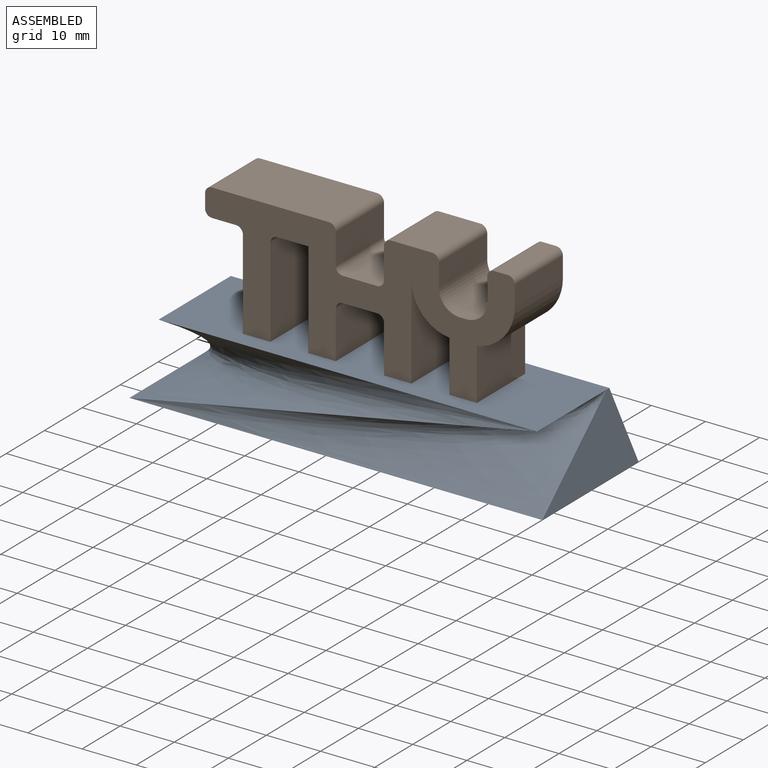
[diagram: assembled view]
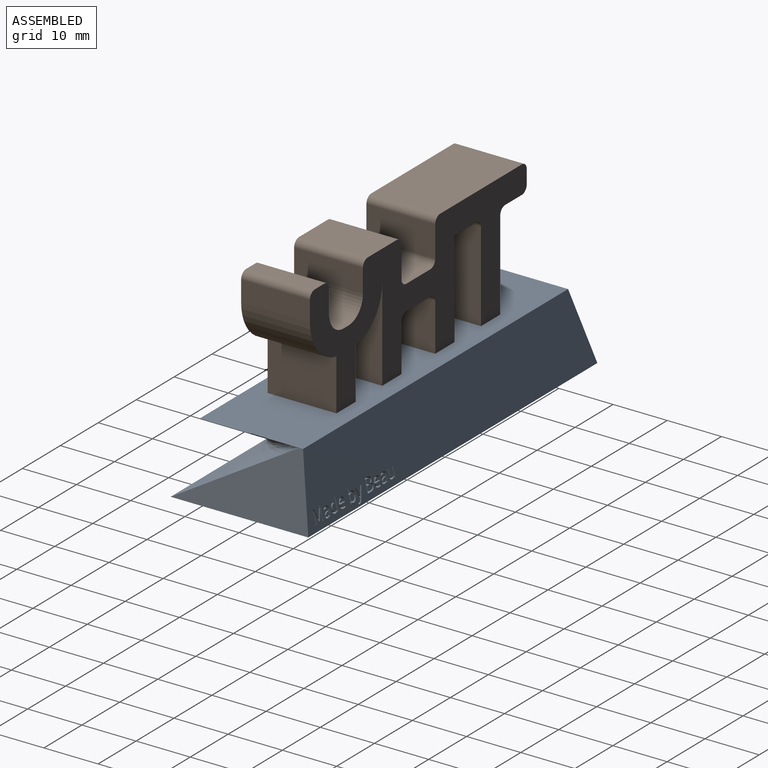
[diagram: assembled view, second angle]
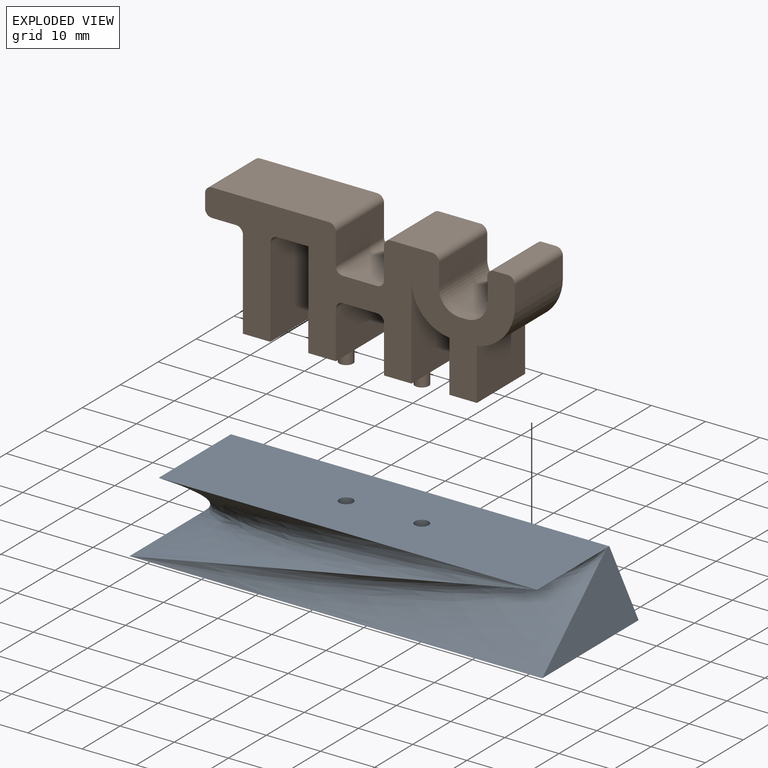
[diagram: exploded view]
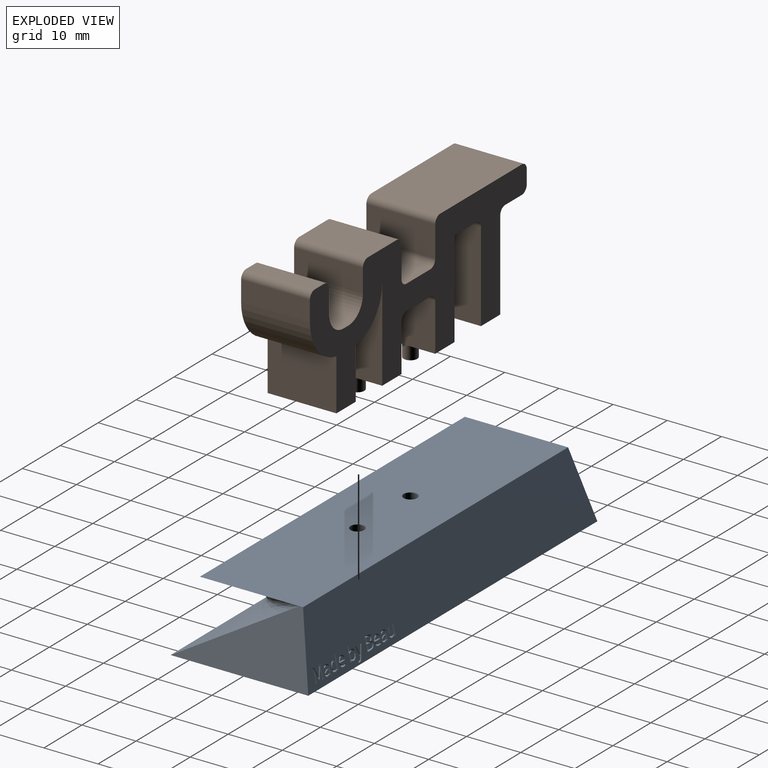
[diagram: exploded view, second angle]
ASSEMBLY  parts=2 mates=2
PART A: 185 faces, bbox 76.2x25.4x12.7 mm
  f0: plane 76.2x12.7mm, normal (0,0.97,0.24), area 934.9mm2, adj f1,f2,f3,f6,f7,f8,f9,f10
  f1: plane 76.2x25.4mm, normal (0,0,-1), area 1935.5mm2, adj f0,f3,f4,f5,f6
  f2: plane 69.85x19.05mm, normal (0,0,1), area 1320.5mm2, adj f0,f3,f4,f5,f6,f181,f183
  f3: plane 22.23x12.7mm, normal (-0.97,0,0.24), area 129.2mm2, adj f0,f1,f2,f4
  f4: bspline ~73.02x24.71mm, area 821.1mm2, adj f1,f2,f3,f5
  f5: bspline ~76.2x21.53mm, area 779mm2, adj f1,f2,f4,f6
  f6: plane 25.4x12.7mm, normal (0.97,0,0.24), area 170.8mm2, adj f0,f1,f2,f5
  f7: plane 2.08x1.21mm, normal (0.94,-0.08,0.32), area 1.6mm2, adj f0,f8,f21,f22
  f8: plane 0.74x0.29mm, normal (0,0.24,-0.97), area 0.2mm2, adj f0,f7,f9,f22
  f9: plane 1.16x0.98mm, normal (-0.95,0.07,-0.3), area 0.8mm2, adj f0,f8,f10,f22
  f10: extruded ~0.86x0.67mm, area 0.4mm2, adj f0,f9,f11,f22
  f11: plane 0.74x0.19mm, normal (0,0.24,-0.97), area 0mm2, adj f0,f10,f12,f22
  f12: extruded ~0.86x0.67mm, area 0.4mm2, adj f0,f11,f13,f22
  f13: plane 1.16x0.98mm, normal (0.94,0.08,-0.33), area 0.8mm2, adj f0,f12,f14,f22
  f14: plane 0.74x0.32mm, normal (0,0.24,-0.97), area 0.2mm2, adj f0,f13,f15,f22
  f15: plane 1.93x1.18mm, normal (-0.93,-0.09,0.36), area 1.5mm2, adj f0,f14,f16,f22
  f16: plane 0.77x0.32mm, normal (-0.96,0.07,-0.27), area 0.1mm2, adj f0,f15,f17,f22
  f17: extruded ~0.83x0.56mm, area 0.5mm2, adj f0,f16,f18,f22
  f18: extruded ~0.75x0.21mm, area 0.1mm2, adj f0,f17,f19,f22
  f19: plane 0.8x0.42mm, normal (-0.97,0.06,-0.23), area 0.2mm2, adj f0,f18,f20,f22
  f20: extruded ~0.75x0.22mm, area 0.2mm2, adj f0,f19,f21,f22
  f21: extruded ~0.89x0.79mm, area 0.8mm2, adj f0,f7,f20,f22
  f22: plane 2.5x1.64mm, normal (0,0.97,0.24), area 1.3mm2, adj f7,f8,f9,f10,f11,f12,f13,f14
  f23: extruded ~1.07x0.96mm, area 1mm2, adj f0,f24,f37,f39
  f24: extruded ~0.8x0.56mm, area 0.5mm2, adj f0,f23,f25,f39
  f25: plane 0.82x0.5mm, normal (1,-0.01,0.03), area 0.2mm2, adj f0,f24,f26,f39
  f26: plane 0.92x0.89mm, normal (1,0,0), area 0.6mm2, adj f0,f25,f27,f39
  f27: plane 0.74x0.3mm, normal (0,0.24,-0.97), area 0.2mm2, adj f0,f26,f28,f39
  f28: plane 2.74x1.38mm, normal (-1,0,0), area 2mm2, adj f0,f27,f29,f39
  f29: plane 0.74x0.24mm, normal (0,-0.24,0.97), area 0.2mm2, adj f0,f28,f30,f39
  f30: plane 0.78x0.37mm, normal (0.99,-0.03,0.14), area 0.1mm2, adj f0,f29,f31,f39
  f31: plane 0.74x0.19mm, normal (0,-0.24,0.97), area 0mm2, adj f0,f30,f32,f39
  f32: extruded ~0.79x0.51mm, area 0.4mm2, adj f0,f31,f37,f39
  f33: plane 1.1x0.97mm, normal (1,0,0), area 0.7mm2, adj f34,f38,f39,f174
  f34: extruded ~0.8x0.48mm, area 0.4mm2, adj f33,f35,f39,f174
  f35: extruded ~0.9x0.83mm, area 0.7mm2, adj f34,f36,f39,f174
  f36: extruded ~0.91x0.88mm, area 0.8mm2, adj f35,f38,f39,f174
  f37: extruded ~1.13x0.98mm, area 1.1mm2, adj f0,f23,f32,f39
  f38: extruded ~0.79x0.44mm, area 0.4mm2, adj f33,f36,f39,f174
  f39: plane 2.6x1.57mm, normal (0,0.97,0.24), area 1.7mm2, adj f23,f24,f25,f26,f27,f28,f29,f30
  f40: plane 0.79x0.38mm, normal (0.88,0.12,-0.47), area 0.2mm2, adj f0,f41,f50,f52
  f41: extruded ~0.77x0.45mm, area 0.4mm2, adj f0,f40,f42,f52
  f42: extruded ~0.89x0.8mm, area 0.7mm2, adj f0,f41,f43,f52
  f43: plane 1.21x0.74mm, normal (0,-0.24,0.97), area 0.9mm2, adj f0,f42,f44,f52
  f44: extruded ~0.78x0.35mm, area 0.1mm2, adj f0,f43,f45,f52
  f45: extruded ~1.01x0.94mm, area 1mm2, adj f0,f44,f46,f52
  f46: extruded ~1.11x0.97mm, area 1.1mm2, adj f0,f45,f47,f52
  f47: extruded ~1.1x0.97mm, area 1.1mm2, adj f0,f46,f50,f52
  f48: extruded ~0.88x0.73mm, area 0.6mm2, adj f49,f51,f52,f175
  f49: plane 0.97x0.74mm, normal (0,0.24,-0.97), area 0.7mm2, adj f48,f51,f52,f175
  f50: extruded ~0.78x0.6mm, area 0.5mm2, adj f0,f40,f47,f52
  f51: extruded ~0.88x0.73mm, area 0.6mm2, adj f48,f49,f52,f175
  f52: plane 1.83x1.53mm, normal (0,0.97,0.24), area 1.3mm2, adj f40,f41,f42,f43,f44,f45,f46,f47
  f53: plane 0.74x0.19mm, normal (0,-0.24,0.97), area 0mm2, adj f0,f54,f67,f69
  f54: plane 0.79x0.39mm, normal (-0.99,-0.03,0.12), area 0.2mm2, adj f0,f53,f55,f69
  f55: plane 0.74x0.25mm, normal (0,-0.24,0.97), area 0.2mm2, adj f0,f54,f56,f69
  f56: plane 1.26x1.01mm, normal (1,0,0), area 0.8mm2, adj f0,f55,f57,f69
  f57: extruded ~0.92x0.9mm, area 0.8mm2, adj f0,f56,f58,f69
  f58: extruded ~0.8x0.71mm, area 0.6mm2, adj f0,f57,f59,f69
  f59: plane 0.79x0.39mm, normal (-0.87,-0.12,0.48), area 0.2mm2, adj f0,f58,f60,f69
  f60: extruded ~0.79x0.54mm, area 0.4mm2, adj f0,f59,f61,f69
  f61: extruded ~0.85x0.63mm, area 0.5mm2, adj f0,f60,f62,f69
  f62: extruded ~1.11x0.9mm, area 1.1mm2, adj f0,f61,f63,f69
  f63: extruded ~0.86x0.68mm, area 0.6mm2, adj f0,f62,f67,f69
  f64: extruded ~0.85x0.81mm, area 0.8mm2, adj f65,f68,f69,f176
  f65: plane 0.86x0.67mm, normal (-1,0,0), area 0.4mm2, adj f64,f66,f69,f176
  f66: extruded ~0.8x0.49mm, area 0.4mm2, adj f65,f68,f69,f176
  f67: extruded ~0.8x0.6mm, area 0.5mm2, adj f0,f53,f63,f69
  f68: extruded ~0.81x0.47mm, area 0.4mm2, adj f64,f66,f69,f176
  f69: plane 1.83x1.41mm, normal (0,0.97,0.24), area 1.3mm2, adj f53,f54,f55,f56,f57,f58,f59,f60
  f70: extruded ~0.92x0.91mm, area 1mm2, adj f0,f71,f85,f88
  f71: extruded ~0.88x0.75mm, area 0.6mm2, adj f0,f70,f72,f88
  f72: plane 0.74x0.2mm, normal (1,0,0), area 0mm2, adj f0,f71,f73,f88
  f73: extruded ~0.87x0.7mm, area 0.5mm2, adj f0,f72,f74,f88
  f74: extruded ~0.88x0.84mm, area 0.9mm2, adj f0,f73,f75,f88
  f75: plane 0.74x0.72mm, normal (0,0.24,-0.97), area 0.6mm2, adj f0,f74,f76,f88
  f76: plane 2.54x1.33mm, normal (-1,0,0), area 1.9mm2, adj f0,f75,f85,f88
  f77: plane 0.74x0.42mm, normal (0,-0.24,0.97), area 0.3mm2, adj f78,f86,f88,f89
  f78: extruded ~0.85x0.66mm, area 0.7mm2, adj f77,f79,f88,f89
  f79: extruded ~0.86x0.66mm, area 0.7mm2, adj f78,f80,f88,f89
  f80: plane 0.74x0.42mm, normal (0,0.24,-0.97), area 0.3mm2, adj f79,f86,f88,f89
  f81: plane 0.74x0.37mm, normal (0,-0.24,0.97), area 0.3mm2, adj f82,f87,f88,f177
  f82: extruded ~0.83x0.57mm, area 0.6mm2, adj f81,f83,f88,f177
  f83: extruded ~0.84x0.59mm, area 0.6mm2, adj f82,f84,f88,f177
  f84: plane 0.74x0.36mm, normal (0,0.24,-0.97), area 0.3mm2, adj f83,f87,f88,f177
  f85: plane 0.78x0.74mm, normal (0,-0.24,0.97), area 0.6mm2, adj f0,f70,f76,f88
  f86: plane 1.07x0.96mm, normal (1,0,0), area 0.7mm2, adj f77,f80,f88,f89
  f87: plane 0.95x0.93mm, normal (1,0,0), area 0.6mm2, adj f81,f84,f88,f177
  f88: plane 2.36x1.7mm, normal (0,0.97,0.24), area 2.1mm2, adj f70,f71,f72,f73,f74,f75,f76,f77
  f89: plane 1.09x0.89mm, normal (0,0.97,0.24), area 0.9mm2, adj f77,f78,f79,f80,f86
  f90: plane 0.74x0.19mm, normal (0,-0.24,0.97), area 0mm2, adj f0,f91,f102,f103
  f91: plane 0.81x0.46mm, normal (-1,-0.02,0.08), area 0.2mm2, adj f0,f90,f92,f103
  f92: plane 0.74x0.25mm, normal (0,-0.24,0.97), area 0.2mm2, adj f0,f91,f93,f103
  f93: plane 1.93x1.18mm, normal (1,0,0), area 1.4mm2, adj f0,f92,f94,f103
  f94: plane 0.74x0.3mm, normal (0,0.24,-0.97), area 0.2mm2, adj f0,f93,f95,f103
  f95: plane 1.42x1.05mm, normal (-1,0,0), area 1mm2, adj f0,f94,f96,f103
  f96: extruded ~0.81x0.49mm, area 0.5mm2, adj f0,f95,f97,f103
  f97: extruded ~0.86x0.65mm, area 0.5mm2, adj f0,f96,f98,f103
  f98: plane 1.26x1.01mm, normal (1,0,0), area 0.8mm2, adj f0,f97,f99,f103
  f99: plane 0.74x0.3mm, normal (0,0.24,-0.97), area 0.2mm2, adj f0,f98,f100,f103
  f100: plane 1.29x1.02mm, normal (-1,0,0), area 0.9mm2, adj f0,f99,f101,f103
  f101: extruded ~0.91x0.87mm, area 0.8mm2, adj f0,f100,f102,f103
  f102: extruded ~0.82x0.6mm, area 0.5mm2, adj f0,f90,f101,f103
  f103: plane 1.79x1.43mm, normal (0,0.97,0.24), area 1.3mm2, adj f90,f91,f92,f93,f94,f95,f96,f97
  f104: plane 0.74x0.19mm, normal (0,-0.24,0.97), area 0mm2, adj f0,f105,f118,f120
  f105: plane 0.79x0.39mm, normal (-0.99,-0.03,0.12), area 0.2mm2, adj f0,f104,f106,f120
  f106: plane 0.74x0.25mm, normal (0,-0.24,0.97), area 0.2mm2, adj f0,f105,f107,f120
  f107: plane 1.26x1.01mm, normal (1,0,0), area 0.8mm2, adj f0,f106,f108,f120
  f108: extruded ~0.92x0.9mm, area 0.8mm2, adj f0,f107,f109,f120
  f109: extruded ~0.8x0.71mm, area 0.6mm2, adj f0,f108,f110,f120
  f110: plane 0.79x0.39mm, normal (-0.87,-0.12,0.48), area 0.2mm2, adj f0,f109,f111,f120
  f111: extruded ~0.79x0.54mm, area 0.4mm2, adj f0,f110,f112,f120
  f112: extruded ~0.85x0.63mm, area 0.5mm2, adj f0,f111,f113,f120
  f113: extruded ~1.11x0.9mm, area 1.1mm2, adj f0,f112,f114,f120
  f114: extruded ~0.86x0.68mm, area 0.6mm2, adj f0,f113,f118,f120
  f115: extruded ~0.85x0.81mm, area 0.8mm2, adj f116,f119,f120,f178
  f116: plane 0.86x0.67mm, normal (-1,0,0), area 0.4mm2, adj f115,f117,f120,f178
  f117: extruded ~0.8x0.49mm, area 0.4mm2, adj f116,f119,f120,f178
  f118: extruded ~0.8x0.6mm, area 0.5mm2, adj f0,f104,f114,f120
  f119: extruded ~0.81x0.47mm, area 0.4mm2, adj f115,f117,f120,f178
  f120: plane 1.83x1.41mm, normal (0,0.97,0.24), area 1.3mm2, adj f104,f105,f106,f107,f108,f109,f110,f111
  f121: plane 0.74x0.19mm, normal (0,-0.24,0.97), area 0mm2, adj f0,f122,f135,f137
  f122: plane 0.79x0.39mm, normal (-0.99,-0.03,0.13), area 0.2mm2, adj f0,f121,f123,f137
  f123: plane 0.74x0.25mm, normal (0,-0.24,0.97), area 0.2mm2, adj f0,f122,f124,f137
  f124: plane 2.74x1.38mm, normal (1,0,0), area 2mm2, adj f0,f123,f125,f137
  f125: plane 0.74x0.3mm, normal (0,0.24,-0.97), area 0.2mm2, adj f0,f124,f126,f137
  f126: plane 0.91x0.86mm, normal (-1,0,0), area 0.5mm2, adj f0,f125,f127,f137
  f127: plane 0.82x0.49mm, normal (-1,-0.01,0.05), area 0.2mm2, adj f0,f126,f128,f137
  f128: extruded ~0.79x0.51mm, area 0.4mm2, adj f0,f127,f129,f137
  f129: extruded ~1.11x0.97mm, area 1mm2, adj f0,f128,f130,f137
  f130: extruded ~1.1x0.97mm, area 1mm2, adj f0,f129,f135,f137
  f131: extruded ~0.91x0.85mm, area 0.7mm2, adj f132,f136,f137,f179
  f132: extruded ~0.79x0.44mm, area 0.4mm2, adj f131,f133,f137,f179
  f133: plane 1.1x0.97mm, normal (-1,0,0), area 0.7mm2, adj f132,f134,f137,f179
  f134: extruded ~0.8x0.46mm, area 0.4mm2, adj f133,f136,f137,f179
  f135: extruded ~0.8x0.55mm, area 0.5mm2, adj f0,f121,f130,f137
  f136: extruded ~0.91x0.86mm, area 0.7mm2, adj f131,f134,f137,f179
  f137: plane 2.6x1.57mm, normal (0,0.97,0.24), area 1.7mm2, adj f121,f122,f123,f124,f125,f126,f127,f128
  f138: plane 0.79x0.38mm, normal (0.88,0.12,-0.47), area 0.2mm2, adj f0,f139,f148,f150
  f139: extruded ~0.77x0.45mm, area 0.4mm2, adj f0,f138,f140,f150
  f140: extruded ~0.89x0.8mm, area 0.7mm2, adj f0,f139,f141,f150
  f141: plane 1.21x0.74mm, normal (0,-0.24,0.97), area 0.9mm2, adj f0,f140,f142,f150
  f142: extruded ~0.78x0.35mm, area 0.1mm2, adj f0,f141,f143,f150
  f143: extruded ~1.01x0.94mm, area 1mm2, adj f0,f142,f144,f150
  f144: extruded ~1.11x0.97mm, area 1.1mm2, adj f0,f143,f145,f150
  f145: extruded ~1.1x0.97mm, area 1.1mm2, adj f0,f144,f148,f150
  f146: extruded ~0.88x0.73mm, area 0.6mm2, adj f147,f149,f150,f180
  f147: plane 0.97x0.74mm, normal (0,0.24,-0.97), area 0.7mm2, adj f146,f149,f150,f180
  f148: extruded ~0.78x0.6mm, area 0.5mm2, adj f0,f138,f145,f150
  f149: extruded ~0.88x0.73mm, area 0.6mm2, adj f146,f147,f150,f180
  f150: plane 1.83x1.53mm, normal (0,0.97,0.24), area 1.3mm2, adj f138,f139,f140,f141,f142,f143,f144,f145
  f151: plane 1.49x1.07mm, normal (1,0,0), area 1mm2, adj f0,f152,f172,f173
  f152: extruded ~0.91x0.88mm, area 0.5mm2, adj f0,f151,f153,f173
  f153: plane 0.74x0.19mm, normal (0,-0.24,0.97), area 0mm2, adj f0,f152,f154,f173
  f154: plane 0.87x0.72mm, normal (-0.94,-0.08,0.32), area 0.4mm2, adj f0,f153,f155,f173
  f155: plane 1.41x1.05mm, normal (-0.94,-0.08,0.33), area 1mm2, adj f0,f154,f156,f173
  f156: plane 0.74x0.21mm, normal (0,-0.24,0.97), area 0.2mm2, adj f0,f155,f157,f173
  f157: plane 1.41x1.05mm, normal (0.94,-0.08,0.33), area 1mm2, adj f0,f156,f158,f173
  f158: plane 0.87x0.72mm, normal (0.94,-0.08,0.32), area 0.4mm2, adj f0,f157,f159,f173
  f159: plane 0.74x0.19mm, normal (0,-0.24,0.97), area 0mm2, adj f0,f158,f160,f173
  f160: extruded ~0.91x0.88mm, area 0.5mm2, adj f0,f159,f161,f173
  f161: plane 1.49x1.07mm, normal (-1,0,0), area 1mm2, adj f0,f160,f162,f173
  f162: plane 0.74x0.29mm, normal (0,-0.24,0.97), area 0.2mm2, adj f0,f161,f163,f173
  f163: plane 2.54x1.33mm, normal (1,0,0), area 1.9mm2, adj f0,f162,f164,f173
  f164: plane 0.74x0.37mm, normal (0,0.24,-0.97), area 0.3mm2, adj f0,f163,f165,f173
  f165: plane 1.45x1.06mm, normal (-0.94,0.08,-0.33), area 1.1mm2, adj f0,f164,f166,f173
  f166: extruded ~0.86x0.68mm, area 0.4mm2, adj f0,f165,f167,f173
  f167: plane 0.74x0.19mm, normal (0,0.24,-0.97), area 0mm2, adj f0,f166,f168,f173
  f168: extruded ~0.86x0.68mm, area 0.4mm2, adj f0,f167,f169,f173
  f169: plane 1.45x1.06mm, normal (0.94,0.08,-0.33), area 1.1mm2, adj f0,f168,f170,f173
  f170: plane 0.74x0.37mm, normal (0,0.24,-0.97), area 0.3mm2, adj f0,f169,f171,f173
  f171: plane 2.54x1.33mm, normal (-1,0,0), area 1.9mm2, adj f0,f170,f172,f173
  f172: plane 0.74x0.28mm, normal (0,-0.24,0.97), area 0.2mm2, adj f0,f151,f171,f173
  f173: plane 2.36x2.03mm, normal (0,0.97,0.24), area 2.3mm2, adj f151,f152,f153,f154,f155,f156,f157,f158
  f174: plane 1.34x0.96mm, normal (0,0.97,0.24), area 1.1mm2, adj f33,f34,f35,f36,f38
  f175: plane 0.97x0.54mm, normal (0,0.97,0.24), area 0.4mm2, adj f48,f49,f51
  f176: plane 0.81x0.72mm, normal (0,0.97,0.24), area 0.5mm2, adj f64,f65,f66,f68
  f177: plane 0.95x0.77mm, normal (0,0.97,0.24), area 0.7mm2, adj f81,f82,f83,f84,f87
  f178: plane 0.81x0.72mm, normal (0,0.97,0.24), area 0.5mm2, adj f115,f116,f117,f119
  f179: plane 1.34x0.96mm, normal (0,0.97,0.24), area 1.1mm2, adj f131,f132,f133,f134,f136
  f180: plane 0.97x0.54mm, normal (0,0.97,0.24), area 0.4mm2, adj f146,f147,f149
  f181: cylinder r=1.27mm len=3.18mm, axis (0,0,1), area 25.3mm2, adj f2,f182
  f182: plane 2.54x2.54mm, normal (0,0,1), area 5.1mm2, adj f181
  f183: cylinder r=1.27mm len=3.18mm, axis (0,0,1), area 25.3mm2, adj f2,f184
  f184: plane 2.54x2.54mm, normal (0,0,1), area 5.1mm2, adj f183
PART B: 49 faces, bbox 57.2x26x12.7 mm
  f0: plane 12.7x5.08mm, normal (0,-1,0), area 64.5mm2, adj f1,f26,f27,f28
  f1: plane 12.7x9.5mm, normal (1,0,0), area 120.6mm2, adj f0,f27,f28,f42
  f2: plane 12.7x3.76mm, normal (1,0,0), area 47.7mm2, adj f27,f28,f29,f42
  f3: plane 12.7x2.54mm, normal (0,1,0), area 32.3mm2, adj f27,f28,f29,f30
  f4: plane 12.7x4.34mm, normal (-1,0,0), area 55.2mm2, adj f27,f28,f30,f43
  f5: plane 12.7x1.27mm, normal (0,1,0), area 16.1mm2, adj f27,f28,f43,f44
  f6: plane 12.7x4.34mm, normal (1,0,0), area 55.2mm2, adj f27,f28,f31,f44
  f7: plane 12.7x7.62mm, normal (0,1,0), area 96.8mm2, adj f27,f28,f31,f32
  f8: plane 12.7x5.74mm, normal (-1,0,0), area 72.9mm2, adj f27,f28,f32,f33
  f9: plane 12.7x6.35mm, normal (0,1,0), area 80.6mm2, adj f27,f28,f33,f34
  f10: plane 12.7x5.74mm, normal (1,0,0), area 72.9mm2, adj f27,f28,f34,f35
  f11: plane 21.59x12.7mm, normal (0,1,0), area 274.2mm2, adj f27,f28,f35,f36
  f12: plane 12.7x2.54mm, normal (-1,0,0), area 32.3mm2, adj f27,f28,f36,f37
  f13: plane 12.7x4.45mm, normal (0,-1,0), area 56.5mm2, adj f27,f28,f37,f38
  f14: plane 16.51x12.7mm, normal (-1,0,0), area 209.7mm2, adj f15,f27,f28,f38
  f15: plane 12.7x5.08mm, normal (0,-1,0), area 64.5mm2, adj f14,f16,f27,f28
  f16: plane 16.51x12.7mm, normal (1,0,0), area 209.7mm2, adj f15,f27,f28,f39
  f17: plane 12.7x5.72mm, normal (0,-1,0), area 72.6mm2, adj f18,f27,f28,f39
  f18: plane 17.78x12.7mm, normal (-1,0,0), area 225.8mm2, adj f17,f19,f27,f28
  f19: plane 12.7x5.08mm, normal (0,-1,0), area 59.4mm2, adj f18,f20,f27,f28,f45
  f20: plane 12.7x8.74mm, normal (1,0,0), area 111mm2, adj f19,f27,f28,f40
  f21: plane 12.7x6.35mm, normal (0,-1,0), area 80.6mm2, adj f27,f28,f40,f41
  f22: plane 12.7x8.74mm, normal (-1,0,0), area 111mm2, adj f23,f27,f28,f41
  f23: plane 12.7x5.08mm, normal (0,-1,0), area 59.4mm2, adj f22,f24,f27,f28,f47
  f24: plane 17.19x12.7mm, normal (1,0,0), area 218.4mm2, adj f23,f25,f27,f28
  f25: cylinder r=7.73mm len=12.7mm, axis (0,0,1), area 144.7mm2, adj f24,f26,f27,f28
  f26: plane 12.7x9.5mm, normal (-1,0,0), area 120.6mm2, adj f0,f25,f27,f28
  f27: plane 57.15x22.86mm, normal (0,0,1), area 657.9mm2, adj f0,f1,f2,f3,f4,f5,f6,f7
  f28: plane 57.15x22.86mm, normal (0,0,-1), area 657.9mm2, adj f0,f1,f2,f3,f4,f5,f6,f7
  f29: cylinder r=1.27mm len=12.7mm, axis (0,0,1), area 25.3mm2, adj f2,f3,f27,f28
  f30: cylinder r=1.27mm len=12.7mm, axis (0,0,-1), area 25.3mm2, adj f3,f4,f27,f28
  f31: cylinder r=1.27mm len=12.7mm, axis (0,0,-1), area 25.3mm2, adj f6,f7,f27,f28
  f32: cylinder r=1.27mm len=12.7mm, axis (0,0,1), area 25.3mm2, adj f7,f8,f27,f28
  f33: cylinder r=1.27mm len=12.7mm, axis (0,0,-1), area 25.3mm2, adj f8,f9,f27,f28
  f34: cylinder r=1.27mm len=12.7mm, axis (0,0,1), area 25.3mm2, adj f9,f10,f27,f28
  f35: cylinder r=1.27mm len=12.7mm, axis (0,0,1), area 25.3mm2, adj f10,f11,f27,f28
  f36: cylinder r=1.27mm len=12.7mm, axis (0,0,1), area 25.3mm2, adj f11,f12,f27,f28
  f37: cylinder r=1.27mm len=12.7mm, axis (0,0,-1), area 25.3mm2, adj f12,f13,f27,f28
  f38: cylinder r=1.27mm len=12.7mm, axis (0,0,1), area 25.3mm2, adj f13,f14,f27,f28
  f39: cylinder r=1.27mm len=12.7mm, axis (0,0,-1), area 25.3mm2, adj f16,f17,f27,f28
  f40: cylinder r=1.27mm len=12.7mm, axis (0,0,1), area 25.3mm2, adj f20,f21,f27,f28
  f41: cylinder r=1.27mm len=12.7mm, axis (0,0,-1), area 25.3mm2, adj f21,f22,f27,f28
  f42: cylinder r=8.46mm len=12.7mm, axis (0,0,-1), area 150mm2, adj f1,f2,f27,f28
  f43: cylinder r=3.81mm len=12.7mm, axis (0,0,1), area 76mm2, adj f4,f5,f27,f28
  f44: cylinder r=3.81mm len=12.7mm, axis (0,0,-1), area 76mm2, adj f5,f6,f27,f28
  f45: cylinder r=1.27mm len=3.18mm, axis (0,-1,0), area 25.3mm2, adj f19,f46
  f46: plane 2.54x2.54mm, normal (0,-1,0), area 5.1mm2, adj f45
  f47: cylinder r=1.27mm len=3.18mm, axis (0,-1,0), area 25.3mm2, adj f23,f48
  f48: plane 2.54x2.54mm, normal (0,-1,0), area 5.1mm2, adj f47
PLACE A t=(-53.97,-9.04,32.61)mm
PLACE B rot(axis=(1,0,0),90deg) t=(-49.21,-2.69,50.05)mm
MATE fastened B.f47 <-> A.f183  axis (0,0,-1) through (-46.99,-9.04,42.13)mm
MATE fastened B.f45 <-> A.f181  axis (0,0,-1) through (-60.96,-9.04,42.13)mm
